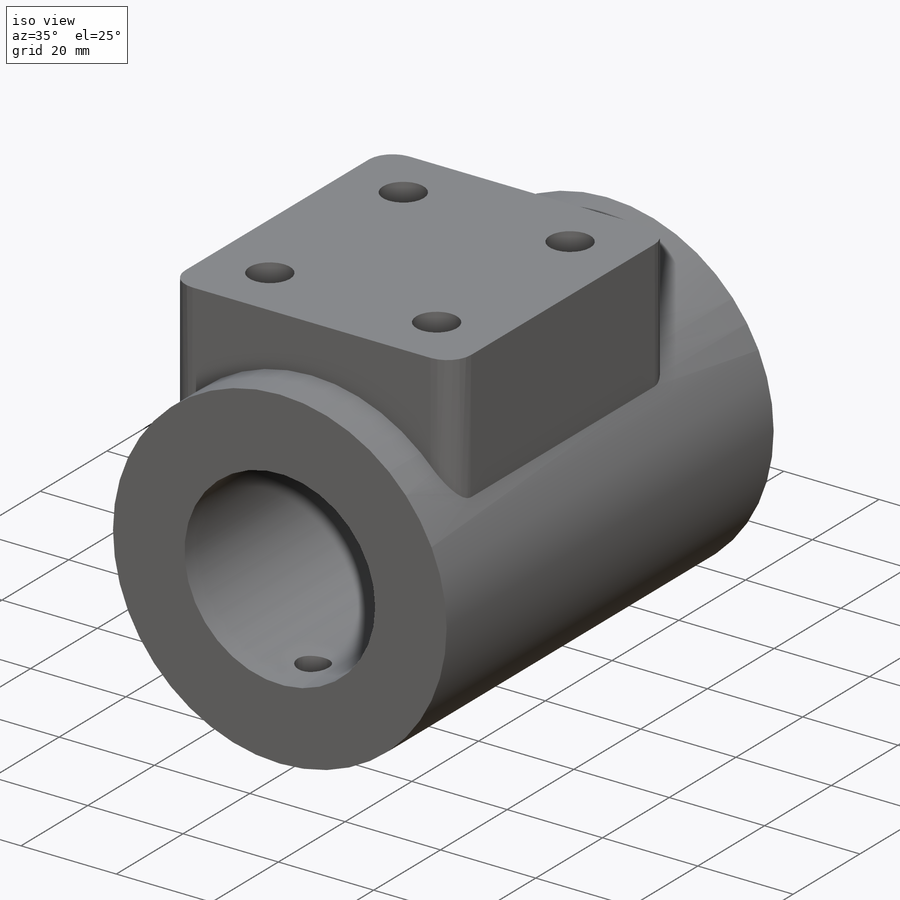
[diagram: iso view]
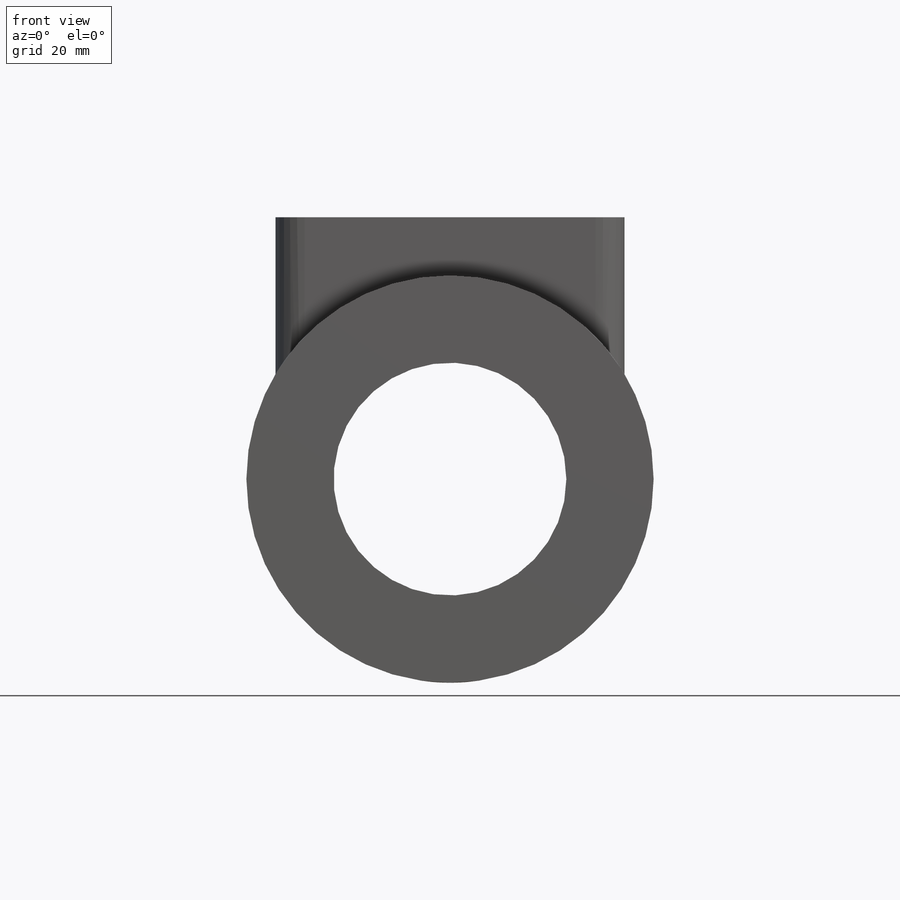
[diagram: front view]
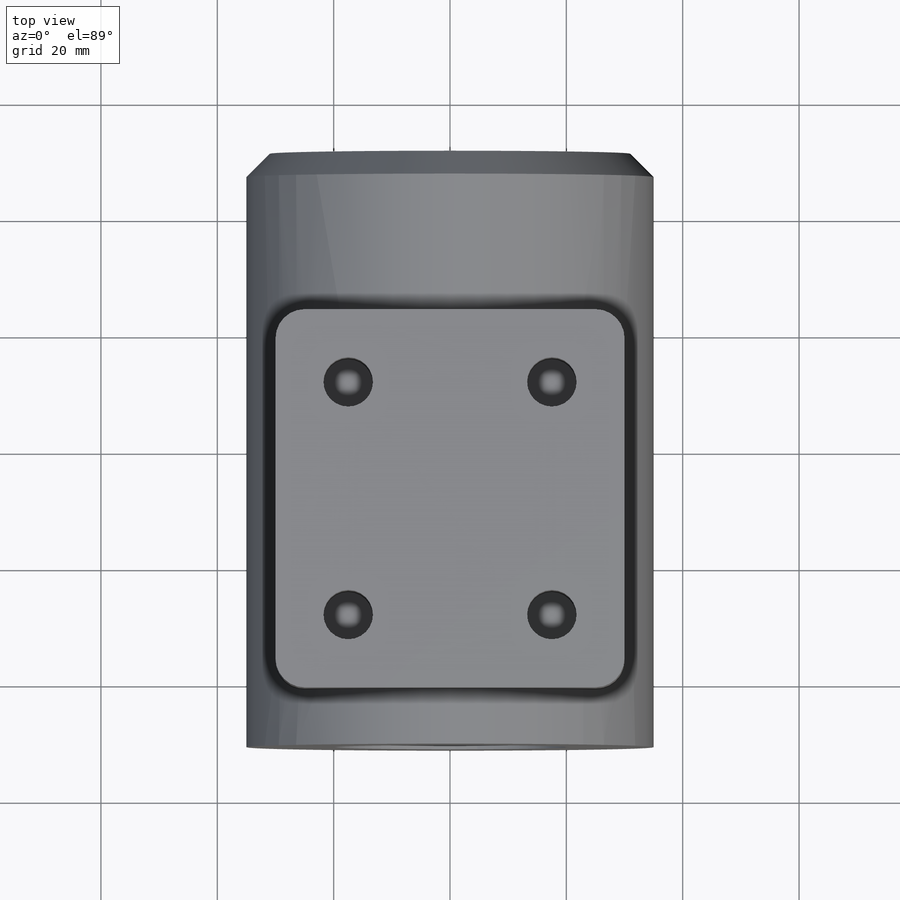
[diagram: top view]
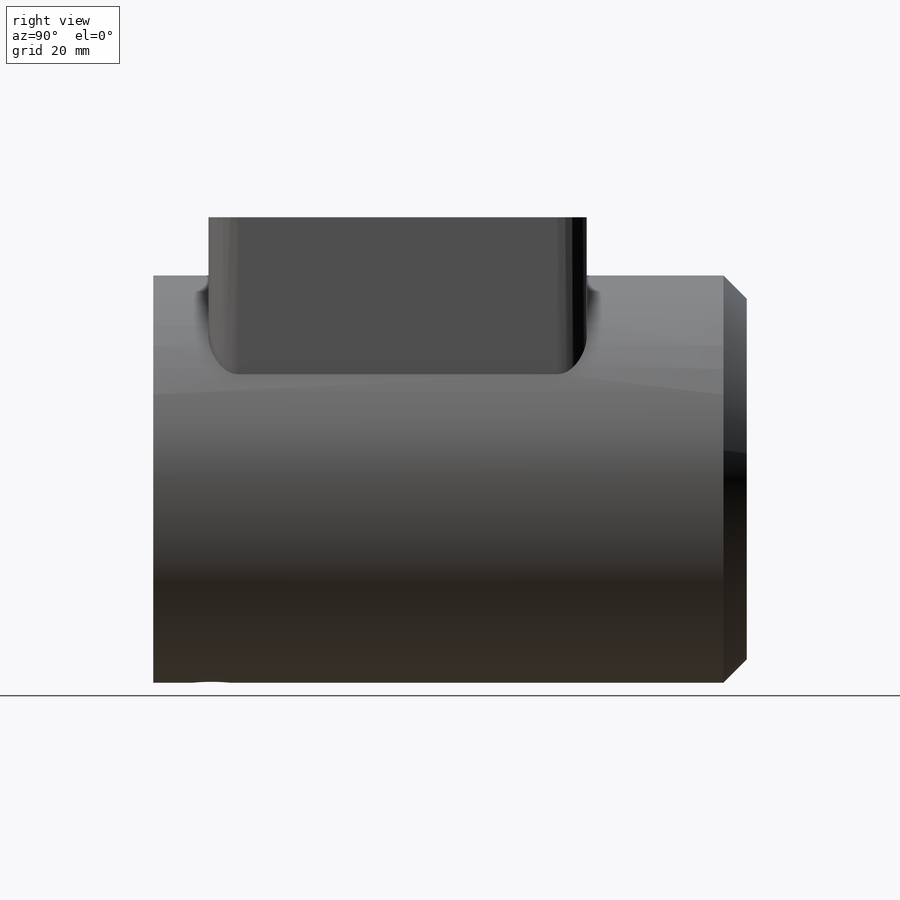
[diagram: right view]
SOLIDWORKS PART (.sldprt)
format: sldprt  version: not decoded by parser v0  size: 270,848 bytes
history: native  units: mm
features: sketch x5, thread x5, plane x3, extrude x2, cut_extrude x2, material x1, cut_revolve x1, chamfer x1 (+13 scaffold rows collapsed)
feature tree (33):
  scaffold x13  (default folders/planes/origin — collapsed)
  material  "Material <não especificado>"
  plane  "Plano frontal"
  plane  "Plano superior"
  plane  "Plano direito"
  sketch  "Esboço1"  dims[D1=70.0mm]
  extrude  "Ressalto-extrusão1"  Depth=102mm
  sketch  "Esboço3"  dims[D3=5.0mm D1=65.0mm D2=60.0mm D4=42.0mm]
  extrude  "Ressalto-extrusão2"  Depth=45mm
  sketch  "Esboço2"  dims[c1.D1=35.0mm c1.D2=25.0mm c1.D3=20.0mm c1.D4=25.0mm c1.D5=1.2mm c2.D4=25.0mm c2.D6=26.5mm]
  cut_revolve  "Corte-Revolução1"  Angle=360deg
  chamfer  "Chanfro1"  Distance=4mm Angle=45deg
  sketch  "Esboço4"  dims[c1.D1=8.5mm c1.D2=8.5mm c1.D3=8.5mm c2.D2=17.5mm c2.D3=20.0mm c3.D2=17.5mm c3.D3=12.5mm c3.D4=40.0mm c3.D5=35.0mm]
  cut_extrude  "Corte-extrusão1"  [1 undecoded]
  thread  "Representação de rosca1"  Diameter=10mm  [1 undecoded]
  thread  "Representação de rosca2"  Diameter=10mm  [1 undecoded]
  thread  "Representação de rosca3"  Diameter=10mm  [1 undecoded]
  thread  "Representação de rosca4"  Diameter=10mm  [1 undecoded]
  sketch  "Esboço5"  dims[D1=6.5mm D2=10.0mm]
  cut_extrude  "Corte-extrusão2"  [1 undecoded]
  thread  "Representação de rosca5"  Diameter=8mm  [1 undecoded]
decode coverage: 14 of 16 modeling features carry decoded parameters
note: 7 parameter values undecoded
note: suppression state not decoded; provenance and decode notes live in map.json
